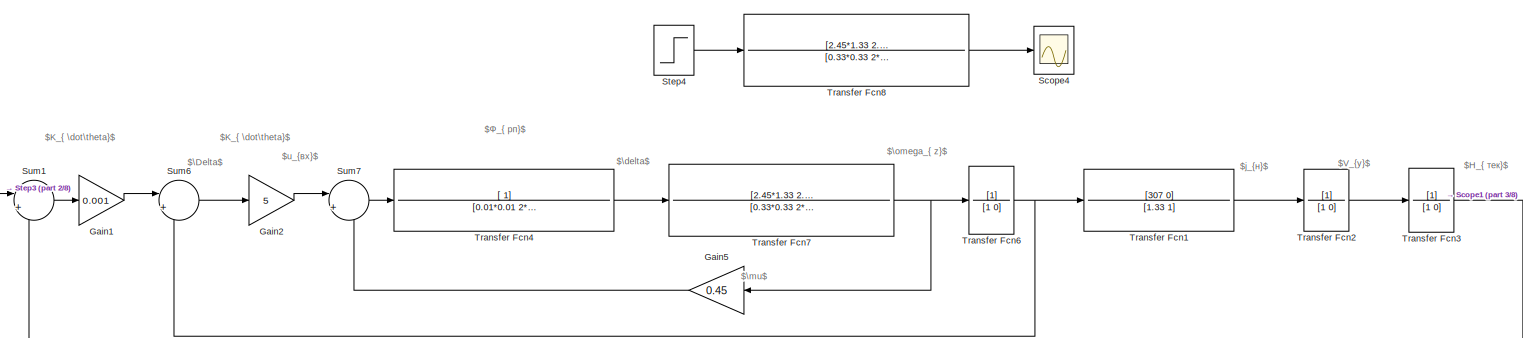
[diagram: root canvas - part 1/8, top center region]
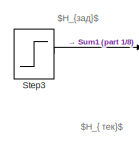
[diagram: root canvas - part 2/8, top left region]
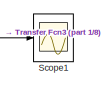
[diagram: root canvas - part 3/8, top right region]
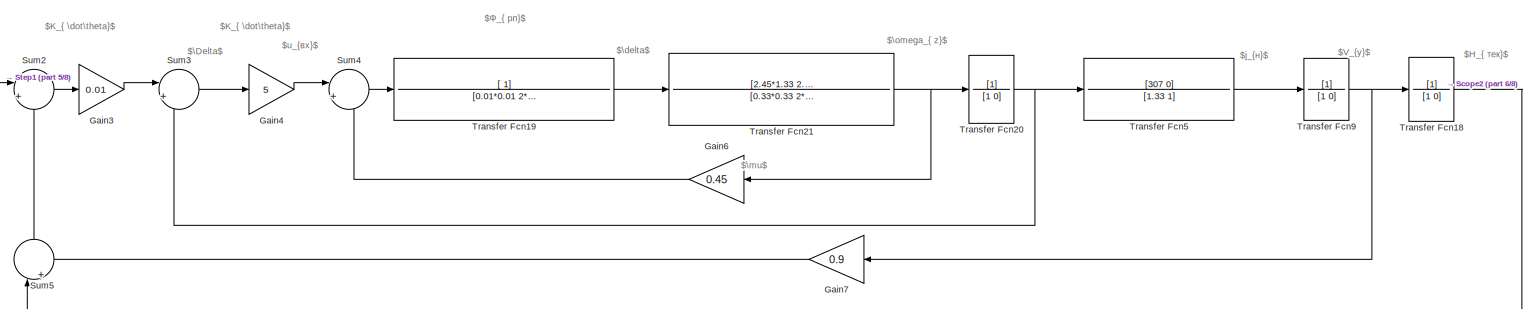
[diagram: root canvas - part 4/8, central region]
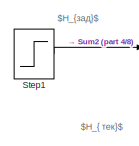
[diagram: root canvas - part 5/8, middle left region]
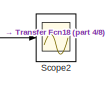
[diagram: root canvas - part 6/8, middle right region]
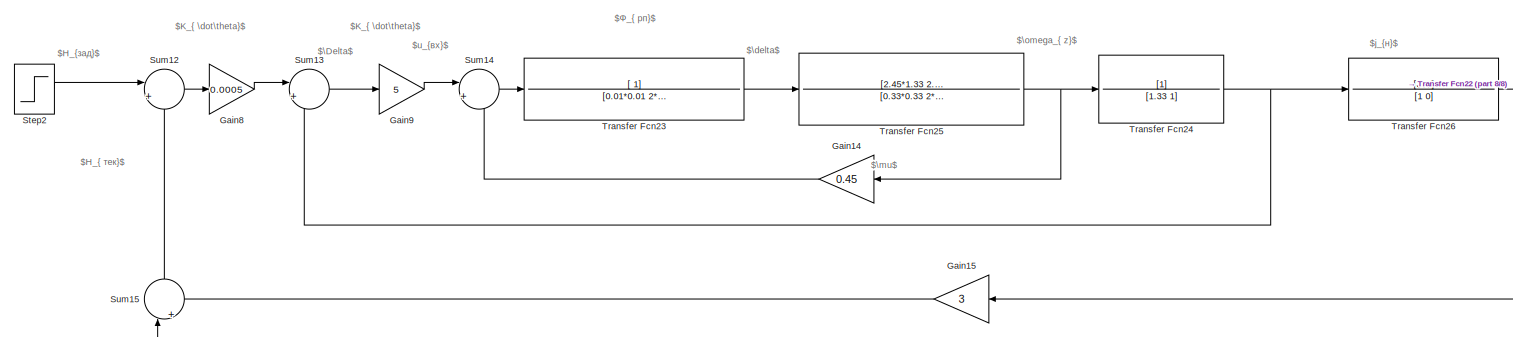
[diagram: root canvas - part 7/8, bottom center region]
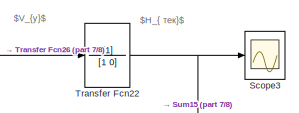
[diagram: root canvas - part 8/8, bottom right region]
MODEL slx_ed857eacbfd1
KIND model
CONFIG AbsTol = auto
CONFIG EnableMultiTasking = off
CONFIG FixedStep = auto
CONFIG MaxStep = auto
CONFIG MinStep = auto
CONFIG RelTol = 1e-3
CONFIG SampleTimeConstraint = Unconstrained
CONFIG Solver = VariableStepAuto
CONFIG SolverName = VariableStepAuto
CONFIG StartTime = 0.0
CONFIG StopTime = 10.0
BLOCK [Gain] Gain1
  Gain = 0.001
  OutDataTypeStr = Inherit: Inherit via internal rule
  ParamDataTypeStr = Inherit: Inherit via internal rule
  SaturateOnIntegerOverflow = off
BLOCK [Gain] Gain14
  Gain = 0.45
  OutDataTypeStr = Inherit: Inherit via internal rule
  ParamDataTypeStr = Inherit: Inherit via internal rule
  SaturateOnIntegerOverflow = off
BLOCK [Gain] Gain15
  Gain = 3
  OutDataTypeStr = Inherit: Inherit via internal rule
  ParamDataTypeStr = Inherit: Inherit via internal rule
  SaturateOnIntegerOverflow = off
BLOCK [Gain] Gain2
  Gain = 5
  OutDataTypeStr = Inherit: Inherit via internal rule
  ParamDataTypeStr = Inherit: Inherit via internal rule
  SaturateOnIntegerOverflow = off
BLOCK [Gain] Gain3
  Gain = 0.01
  OutDataTypeStr = Inherit: Inherit via internal rule
  ParamDataTypeStr = Inherit: Inherit via internal rule
  SaturateOnIntegerOverflow = off
BLOCK [Gain] Gain4
  Gain = 5
  OutDataTypeStr = Inherit: Inherit via internal rule
  ParamDataTypeStr = Inherit: Inherit via internal rule
  SaturateOnIntegerOverflow = off
BLOCK [Gain] Gain5
  Gain = 0.45
  OutDataTypeStr = Inherit: Inherit via internal rule
  ParamDataTypeStr = Inherit: Inherit via internal rule
  SaturateOnIntegerOverflow = off
BLOCK [Gain] Gain6
  Gain = 0.45
  OutDataTypeStr = Inherit: Inherit via internal rule
  ParamDataTypeStr = Inherit: Inherit via internal rule
  SaturateOnIntegerOverflow = off
BLOCK [Gain] Gain7
  Gain = 0.9
  OutDataTypeStr = Inherit: Inherit via internal rule
  ParamDataTypeStr = Inherit: Inherit via internal rule
  SaturateOnIntegerOverflow = off
BLOCK [Gain] Gain8
  Gain = 0.0005
  OutDataTypeStr = Inherit: Inherit via internal rule
  ParamDataTypeStr = Inherit: Inherit via internal rule
  SaturateOnIntegerOverflow = off
BLOCK [Gain] Gain9
  Gain = 5
  OutDataTypeStr = Inherit: Inherit via internal rule
  ParamDataTypeStr = Inherit: Inherit via internal rule
  SaturateOnIntegerOverflow = off
BLOCK [Scope] Scope1
  Floating = off
  NumInputPorts = 1
  Ports = [1]
  ScopeSpecificationString = Simulink.scopes.TimeScopeBlockCfg('CurrentConfiguration', extmgr.ConfigurationSet(extmgr.Configuration('Core','General UI',true,'FigureColor',[1 1 1]),extmgr.Configuration('Core','Source UI',true),extmgr.Configuration('Sources','WiredSimulink',true,'DataLoggingVariableName','ScopeData1'),extmgr.Configuration('Visuals','Time Domain',true,'SerializedDisplays',{struct('MinYLimReal','-0.12901','MaxYLi...<+1532ch>
BLOCK [Scope] Scope2
  Floating = off
  NumInputPorts = 1
  Ports = [1]
  ScopeSpecificationString = Simulink.scopes.TimeScopeBlockCfg('CurrentConfiguration', extmgr.ConfigurationSet(extmgr.Configuration('Core','General UI',true,'FigureColor',[1 1 1]),extmgr.Configuration('Core','Source UI',true),extmgr.Configuration('Sources','WiredSimulink',true,'DataLoggingVariableName','ScopeData2'),extmgr.Configuration('Visuals','Time Domain',true,'SerializedDisplays',{struct('MinYLimReal','-0.12508','MaxYLi...<+1533ch>
BLOCK [Scope] Scope3
  Floating = off
  NumInputPorts = 1
  Ports = [1]
  ScopeSpecificationString = Simulink.scopes.TimeScopeBlockCfg('CurrentConfiguration', extmgr.ConfigurationSet(extmgr.Configuration('Core','General UI',true,'FigureColor',[1 1 1]),extmgr.Configuration('Core','Source UI',true),extmgr.Configuration('Sources','WiredSimulink',true,'DataLoggingVariableName','ScopeData3'),extmgr.Configuration('Visuals','Time Domain',true,'SerializedDisplays',{struct('MinYLimReal','-0.14215','MaxYLi...<+1533ch>
BLOCK [Scope] Scope4
  Floating = off
  NumInputPorts = 1
  Ports = [1]
  ScopeSpecificationString = Simulink.scopes.TimeScopeBlockCfg('CurrentConfiguration', extmgr.ConfigurationSet(extmgr.Configuration('Core','General UI',true,'FigureColor',[1 1 1]),extmgr.Configuration('Core','Source UI',true),extmgr.Configuration('Sources','WiredSimulink',true),extmgr.Configuration('Visuals','Time Domain',true,'SerializedDisplays',{struct('MinYLimReal','-19.09766','MaxYLimReal','57.99371','YLabelReal','','Min...<+1499ch>
BLOCK [Step] Step1
  SampleTime = 0
BLOCK [Step] Step2
  SampleTime = 0
BLOCK [Step] Step3
  SampleTime = 0
BLOCK [Step] Step4
  After = 5
  SampleTime = 0
BLOCK [Sum] Sum1
  IconShape = round
  InputSameDT = off
  Inputs = |+-
  OutDataTypeStr = Inherit: Inherit via internal rule
  Ports = [2, 1]
  SaturateOnIntegerOverflow = off
BLOCK [Sum] Sum12
  IconShape = round
  InputSameDT = off
  Inputs = |+-
  OutDataTypeStr = Inherit: Inherit via internal rule
  Ports = [2, 1]
  SaturateOnIntegerOverflow = off
BLOCK [Sum] Sum13
  IconShape = round
  InputSameDT = off
  Inputs = |+-
  OutDataTypeStr = Inherit: Inherit via internal rule
  Ports = [2, 1]
  SaturateOnIntegerOverflow = off
BLOCK [Sum] Sum14
  IconShape = round
  InputSameDT = off
  Inputs = |+-
  OutDataTypeStr = Inherit: Inherit via internal rule
  Ports = [2, 1]
  SaturateOnIntegerOverflow = off
BLOCK [Sum] Sum15
  IconShape = round
  InputSameDT = off
  Inputs = |++
  OutDataTypeStr = Inherit: Inherit via internal rule
  Ports = [2, 1]
  SaturateOnIntegerOverflow = off
BLOCK [Sum] Sum2
  IconShape = round
  InputSameDT = off
  Inputs = |+-
  OutDataTypeStr = Inherit: Inherit via internal rule
  Ports = [2, 1]
  SaturateOnIntegerOverflow = off
BLOCK [Sum] Sum3
  IconShape = round
  InputSameDT = off
  Inputs = |+-
  OutDataTypeStr = Inherit: Inherit via internal rule
  Ports = [2, 1]
  SaturateOnIntegerOverflow = off
BLOCK [Sum] Sum4
  IconShape = round
  InputSameDT = off
  Inputs = |+-
  OutDataTypeStr = Inherit: Inherit via internal rule
  Ports = [2, 1]
  SaturateOnIntegerOverflow = off
BLOCK [Sum] Sum5
  IconShape = round
  InputSameDT = off
  Inputs = |++
  OutDataTypeStr = Inherit: Inherit via internal rule
  Ports = [2, 1]
  SaturateOnIntegerOverflow = off
BLOCK [Sum] Sum6
  IconShape = round
  InputSameDT = off
  Inputs = |+-
  OutDataTypeStr = Inherit: Inherit via internal rule
  Ports = [2, 1]
  SaturateOnIntegerOverflow = off
BLOCK [Sum] Sum7
  IconShape = round
  InputSameDT = off
  Inputs = |+-
  OutDataTypeStr = Inherit: Inherit via internal rule
  Ports = [2, 1]
  SaturateOnIntegerOverflow = off
BLOCK [TransferFcn] Transfer Fcn1
  Denominator = [1.33 1]
  Numerator = [307 0]
BLOCK [TransferFcn] Transfer Fcn18
  Denominator = [1 0]
BLOCK [TransferFcn] Transfer Fcn19
  Denominator = [0.01*0.01 2*0.7*0.01 1]
  Numerator = [ 1]
BLOCK [TransferFcn] Transfer Fcn2
  Denominator = [1 0]
BLOCK [TransferFcn] Transfer Fcn20
  Denominator = [1 0]
BLOCK [TransferFcn] Transfer Fcn21
  Denominator = [0.33*0.33 2*0.15*0.33 1]
  Numerator = [2.45*1.33 2.45]
BLOCK [TransferFcn] Transfer Fcn22
  Denominator = [1 0]
BLOCK [TransferFcn] Transfer Fcn23
  Denominator = [0.01*0.01 2*0.7*0.01 1]
  Numerator = [ 1]
BLOCK [TransferFcn] Transfer Fcn24
  Denominator = [1.33 1]
BLOCK [TransferFcn] Transfer Fcn25
  Denominator = [0.33*0.33 2*0.15*0.33 1]
  Numerator = [2.45*1.33 2.45]
BLOCK [TransferFcn] Transfer Fcn26
  Denominator = [1 0]
  Numerator = [307]
BLOCK [TransferFcn] Transfer Fcn3
  Denominator = [1 0]
BLOCK [TransferFcn] Transfer Fcn4
  Denominator = [0.01*0.01 2*0.7*0.01 1]
  Numerator = [ 1]
BLOCK [TransferFcn] Transfer Fcn5
  Denominator = [1.33 1]
  Numerator = [307 0]
BLOCK [TransferFcn] Transfer Fcn6
  Denominator = [1 0]
BLOCK [TransferFcn] Transfer Fcn7
  Denominator = [0.33*0.33 2*0.15*0.33 1]
  Numerator = [2.45*1.33 2.45]
BLOCK [TransferFcn] Transfer Fcn8
  Denominator = [0.33*0.33 2*0.15*0.33 1]
  Numerator = [2.45*1.33 2.45]
BLOCK [TransferFcn] Transfer Fcn9
  Denominator = [1 0]
ANNOTATION (root): $H_{ тек}$
ANNOTATION (root): $H_{зад}$
ANNOTATION (root): $V_{y}$
ANNOTATION (root): $j_{н}$
ANNOTATION (root): $\mu$
ANNOTATION (root): $u_{вх}$
ANNOTATION (root): $\Delta$
ANNOTATION (root): $K_{ \dot\theta}$
ANNOTATION (root): $\delta$
ANNOTATION (root): $\omega_{ z}$
ANNOTATION (root): $Ф_{ рп}$
LINE Gain14:1 -> Sum14:2
LINE Gain15:1 -> Sum15:2
LINE Gain1:1 -> Sum6:1
LINE Gain2:1 -> Sum7:1
LINE Gain3:1 -> Sum3:1
LINE Gain4:1 -> Sum4:1
LINE Gain5:1 -> Sum7:2
LINE Gain6:1 -> Sum4:2
LINE Gain7:1 -> Sum5:2
LINE Gain8:1 -> Sum13:1
LINE Gain9:1 -> Sum14:1
LINE Step1:1 -> Sum2:1
LINE Step2:1 -> Sum12:1
LINE Step3:1 -> Sum1:1
LINE Step4:1 -> Transfer Fcn8:1
LINE Sum12:1 -> Gain8:1
LINE Sum13:1 -> Gain9:1
LINE Sum14:1 -> Transfer Fcn23:1
LINE Sum15:1 -> Sum12:2
LINE Sum1:1 -> Gain1:1
LINE Sum2:1 -> Gain3:1
LINE Sum3:1 -> Gain4:1
LINE Sum4:1 -> Transfer Fcn19:1
LINE Sum5:1 -> Sum2:2
LINE Sum6:1 -> Gain2:1
LINE Sum7:1 -> Transfer Fcn4:1
NET Transfer Fcn18:1 -> Scope2:1, Sum5:1
LINE Transfer Fcn19:1 -> Transfer Fcn21:1
LINE Transfer Fcn1:1 -> Transfer Fcn2:1
NET Transfer Fcn20:1 -> Sum3:2, Transfer Fcn5:1
NET Transfer Fcn21:1 -> Gain6:1, Transfer Fcn20:1
NET Transfer Fcn22:1 -> Scope3:1, Sum15:1
LINE Transfer Fcn23:1 -> Transfer Fcn25:1
NET Transfer Fcn24:1 -> Sum13:2, Transfer Fcn26:1
NET Transfer Fcn25:1 -> Gain14:1, Transfer Fcn24:1
NET Transfer Fcn26:1 -> Gain15:1, Transfer Fcn22:1
LINE Transfer Fcn2:1 -> Transfer Fcn3:1
NET Transfer Fcn3:1 -> Scope1:1, Sum1:2
LINE Transfer Fcn4:1 -> Transfer Fcn7:1
LINE Transfer Fcn5:1 -> Transfer Fcn9:1
NET Transfer Fcn6:1 -> Sum6:2, Transfer Fcn1:1
NET Transfer Fcn7:1 -> Gain5:1, Transfer Fcn6:1
LINE Transfer Fcn8:1 -> Scope4:1
NET Transfer Fcn9:1 -> Gain7:1, Transfer Fcn18:1
note: NET lines group one-source signal fan-out (src -> all destinations, sorted); 1:1 wires keep LINE
